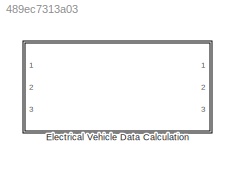
MODEL slx_489ec7313a03
KIND library
CONFIG AbsTol = auto
CONFIG EnableMultiTasking = off
CONFIG FixedStep = auto
CONFIG MaxStep = auto
CONFIG MinStep = auto
CONFIG RelTol = 1e-3
CONFIG SampleTimeConstraint = Unconstrained
CONFIG Solver = VariableStepAuto
CONFIG SolverName = VariableStepAuto
CONFIG StartTime = 0.0
CONFIG StopTime = 10.0
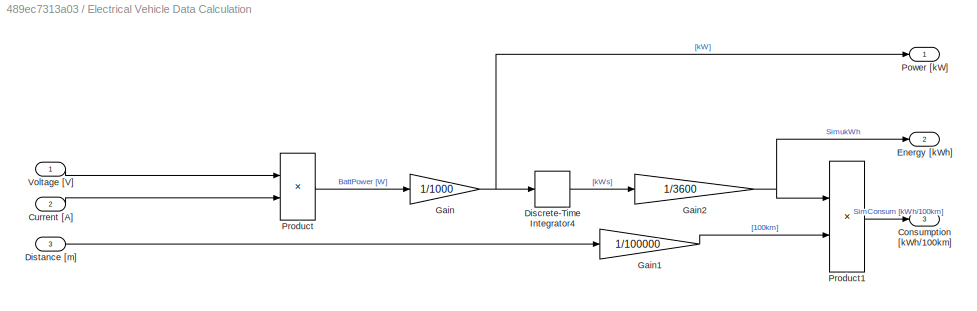
BLOCK [SubSystem] Electrical Vehicle Data Calculation
  Ports = [3, 3]
  RequestExecContextInheritance = off
  Variant = off
BLOCK [Outport] Electrical Vehicle Data Calculation/Consumption [kWh//100km]
  IconDisplay = Port number
  Port = 3
BLOCK [Inport] Electrical Vehicle Data Calculation/Current [A]
  IconDisplay = Port number
  Port = 2
BLOCK [DiscreteIntegrator] Electrical Vehicle Data Calculation/Discrete-Time Integrator4
  ICPrevOutput = DiscIntNeverNeededParam
  ICPrevScaledInput = DiscIntNeverNeededParam
  InitialConditionSetting = State (most efficient)
  Ports = [1, 1]
  SampleTime = -1
BLOCK [Inport] Electrical Vehicle Data Calculation/Distance [m]
  IconDisplay = Port number
  Port = 3
BLOCK [Outport] Electrical Vehicle Data Calculation/Energy [kWh]
  IconDisplay = Port number
  Port = 2
BLOCK [Gain] Electrical Vehicle Data Calculation/Gain
  Gain = 1/1000
  OutDataTypeStr = Inherit: Inherit via internal rule
  ParamDataTypeStr = Inherit: Inherit via internal rule
  SaturateOnIntegerOverflow = off
BLOCK [Gain] Electrical Vehicle Data Calculation/Gain1
  Gain = 1/100000
  OutDataTypeStr = Inherit: Inherit via internal rule
  ParamDataTypeStr = Inherit: Inherit via internal rule
  SaturateOnIntegerOverflow = off
BLOCK [Gain] Electrical Vehicle Data Calculation/Gain2
  Gain = 1/3600
  OutDataTypeStr = Inherit: Inherit via internal rule
  ParamDataTypeStr = Inherit: Inherit via internal rule
  SaturateOnIntegerOverflow = off
BLOCK [Outport] Electrical Vehicle Data Calculation/Power [kW]
  IconDisplay = Port number
BLOCK [Product] Electrical Vehicle Data Calculation/Product
  InputSameDT = off
  OutDataTypeStr = Inherit: Inherit via internal rule
  Ports = [2, 1]
  RndMeth = Floor
  SaturateOnIntegerOverflow = off
BLOCK [Product] Electrical Vehicle Data Calculation/Product1
  InputSameDT = off
  Inputs = */
  OutDataTypeStr = Inherit: Inherit via internal rule
  Ports = [2, 1]
  RndMeth = Floor
  SaturateOnIntegerOverflow = off
BLOCK [Inport] Electrical Vehicle Data Calculation/Voltage [V]
  IconDisplay = Port number
LINE Electrical Vehicle Data Calculation/Current [A]:1 -> Electrical Vehicle Data Calculation/Product:2
LINE Electrical Vehicle Data Calculation/Discrete-Time Integrator4:1 -> Electrical Vehicle Data Calculation/Gain2:1
LINE Electrical Vehicle Data Calculation/Distance [m]:1 -> Electrical Vehicle Data Calculation/Gain1:1
LINE Electrical Vehicle Data Calculation/Gain1:1 -> Electrical Vehicle Data Calculation/Product1:2
NET Electrical Vehicle Data Calculation/Gain2:1 -> Electrical Vehicle Data Calculation/Energy [kWh]:1, Electrical Vehicle Data Calculation/Product1:1
NET Electrical Vehicle Data Calculation/Gain:1 -> Electrical Vehicle Data Calculation/Discrete-Time Integrator4:1, Electrical Vehicle Data Calculation/Power [kW]:1
LINE Electrical Vehicle Data Calculation/Product1:1 -> Electrical Vehicle Data Calculation/Consumption [kWh//100km]:1
LINE Electrical Vehicle Data Calculation/Product:1 -> Electrical Vehicle Data Calculation/Gain:1
LINE Electrical Vehicle Data Calculation/Voltage [V]:1 -> Electrical Vehicle Data Calculation/Product:1
note: NET lines group one-source signal fan-out (src -> all destinations, sorted); 1:1 wires keep LINE
